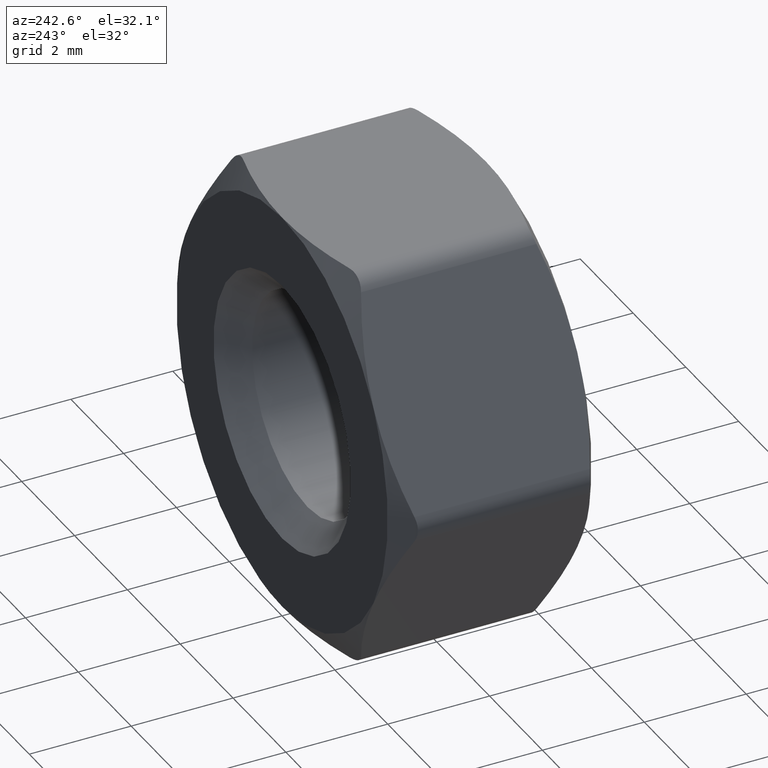
[diagram: clean part render]
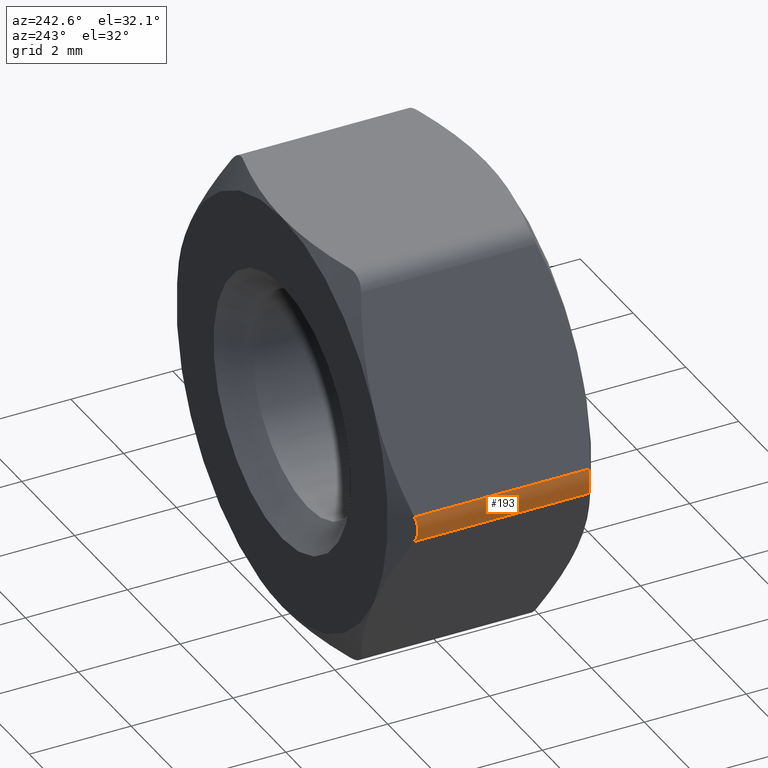
[diagram: same view with one face highlighted and labeled with its STEP entity id]
A machine part, auxiliary view. The second image highlights one B-rep face of the part: STEP entity #193.
In plain terms, the highlighted cylindrical surface (edge-blend (fillet) strip) has radius 0.5 mm, axis along (0, -1, 0).
Its self-contained STEP definition (entity closure, byte-faithful):
#29 = CARTESIAN_POINT ( 'NONE',  ( -4.474464586219602000, 2.000000000000000000, -0.2500000000000002200 ) ) ;
#68 = CARTESIAN_POINT ( 'NONE',  ( -4.474464586219602000, -1.722038627381834000, -0.2500000000000001100 ) ) ;
#91 = VECTOR ( 'NONE', #540, 1000.000000000000000 ) ;
#190 = EDGE_CURVE ( 'NONE', #329, #1546, #343, .T. ) ;
#193 = ADVANCED_FACE ( 'NONE', ( #941 ), #441, .T. ) ;
#225 = EDGE_CURVE ( 'NONE', #367, #329, #546, .T. ) ;
#261 = CARTESIAN_POINT ( 'NONE',  ( -4.474464586219602000, 1.722038627381834200, 0.2500000000000003300 ) ) ;
#289 = VERTEX_POINT ( 'NONE', #981 ) ;
#301 = CARTESIAN_POINT ( 'NONE',  ( -4.474464586219602000, -1.722038627381834000, -0.2500000000000001100 ) ) ;
#329 = VERTEX_POINT ( 'NONE', #1686 ) ;
#343 = B_SPLINE_CURVE_WITH_KNOTS ( 'NONE', 3,
 ( #833, #1775, #388, #1336, #1623, #261 ),
 .UNSPECIFIED., .F., .F.,
 ( 4, 2, 4 ),
 ( 5.010482502839524200E-015, 0.0002633584510839034100, 0.0005267169021627963900 ),
 .UNSPECIFIED. ) ;
#367 = VERTEX_POINT ( 'NONE', #301 ) ;
#381 = DIRECTION ( 'NONE',  ( -0.0000000000000000000, 1.000000000000000000, -0.0000000000000000000 ) ) ;
#388 = CARTESIAN_POINT ( 'NONE',  ( -4.541376478600925600, 1.687431351220644500, -0.08835353437093901300 ) ) ;
#428 = EDGE_CURVE ( 'NONE', #289, #367, #1059, .T. ) ;
#441 = CYLINDRICAL_SURFACE ( 'NONE', #1103, 0.5000000000000000000 ) ;
#443 = ORIENTED_EDGE ( 'NONE', *, *, #190, .F. ) ;
#518 = LINE ( 'NONE', #547, #91 ) ;
#540 = DIRECTION ( 'NONE',  ( 0.0000000000000000000, -1.000000000000000000, 0.0000000000000000000 ) ) ;
#546 = LINE ( 'NONE', #29, #1566 ) ;
#547 = CARTESIAN_POINT ( 'NONE',  ( -4.474464586219602000, 2.000000000000000000, 0.2499999999999997200 ) ) ;
#833 = CARTESIAN_POINT ( 'NONE',  ( -4.474464586222180400, 1.722038627380490800, -0.2499999999955336300 ) ) ;
#870 = EDGE_CURVE ( 'NONE', #1546, #289, #518, .T. ) ;
#876 = CARTESIAN_POINT ( 'NONE',  ( -4.517529732601576400, -1.699616087002126400, -0.1754089784310331500 ) ) ;
#920 = ORIENTED_EDGE ( 'NONE', *, *, #428, .F. ) ;
#936 = CARTESIAN_POINT ( 'NONE',  ( -4.041451884327381400, 2.000000000000000000, -3.794707603699265500E-016 ) ) ;
#941 = FACE_OUTER_BOUND ( 'NONE', #1170, .T. ) ;
#968 = ORIENTED_EDGE ( 'NONE', *, *, #870, .F. ) ;
#981 = CARTESIAN_POINT ( 'NONE',  ( -4.474464586222180400, -1.722038627380490600, 0.2499999999955328800 ) ) ;
#1059 = B_SPLINE_CURVE_WITH_KNOTS ( 'NONE', 3,
 ( #1147, #1420, #1136, #1707, #876, #68 ),
 .UNSPECIFIED., .F., .F.,
 ( 4, 2, 4 ),
 ( 5.010581787545190200E-015, 0.0002633584510839033000, 0.0005267169021627959600 ),
 .UNSPECIFIED. ) ;
#1103 = AXIS2_PLACEMENT_3D ( 'NONE', #936, #1210, #1106 ) ;
#1106 = DIRECTION ( 'NONE',  ( 0.0000000000000000000, 0.0000000000000000000, -1.000000000000000000 ) ) ;
#1136 = CARTESIAN_POINT ( 'NONE',  ( -4.541376478600925600, -1.687431351220643800, 0.08835353437093836100 ) ) ;
#1147 = CARTESIAN_POINT ( 'NONE',  ( -4.474464586222180400, -1.722038627380490600, 0.2499999999955328800 ) ) ;
#1170 = EDGE_LOOP ( 'NONE', ( #443, #1748, #920, #968 ) ) ;
#1210 = DIRECTION ( 'NONE',  ( 0.0000000000000000000, -1.000000000000000000, 0.0000000000000000000 ) ) ;
#1336 = CARTESIAN_POINT ( 'NONE',  ( -4.541526924092043100, 1.687354054466037700, 0.08749800911893745900 ) ) ;
#1420 = CARTESIAN_POINT ( 'NONE',  ( -4.517516612061568200, -1.699622918414648700, 0.1754317038729457400 ) ) ;
#1546 = VERTEX_POINT ( 'NONE', #1714 ) ;
#1566 = VECTOR ( 'NONE', #381, 1000.000000000000000 ) ;
#1623 = CARTESIAN_POINT ( 'NONE',  ( -4.517529732601576400, 1.699616087002126400, 0.1754089784310324000 ) ) ;
#1686 = CARTESIAN_POINT ( 'NONE',  ( -4.474464586222180400, 1.722038627380490800, -0.2499999999955336300 ) ) ;
#1707 = CARTESIAN_POINT ( 'NONE',  ( -4.541526924092043100, -1.687354054466037900, -0.08749800911893791700 ) ) ;
#1714 = CARTESIAN_POINT ( 'NONE',  ( -4.474464586219602000, 1.722038627381834200, 0.2500000000000003300 ) ) ;
#1748 = ORIENTED_EDGE ( 'NONE', *, *, #225, .F. ) ;
#1775 = CARTESIAN_POINT ( 'NONE',  ( -4.517516612061568200, 1.699622918414649000, -0.1754317038729463200 ) ) ;